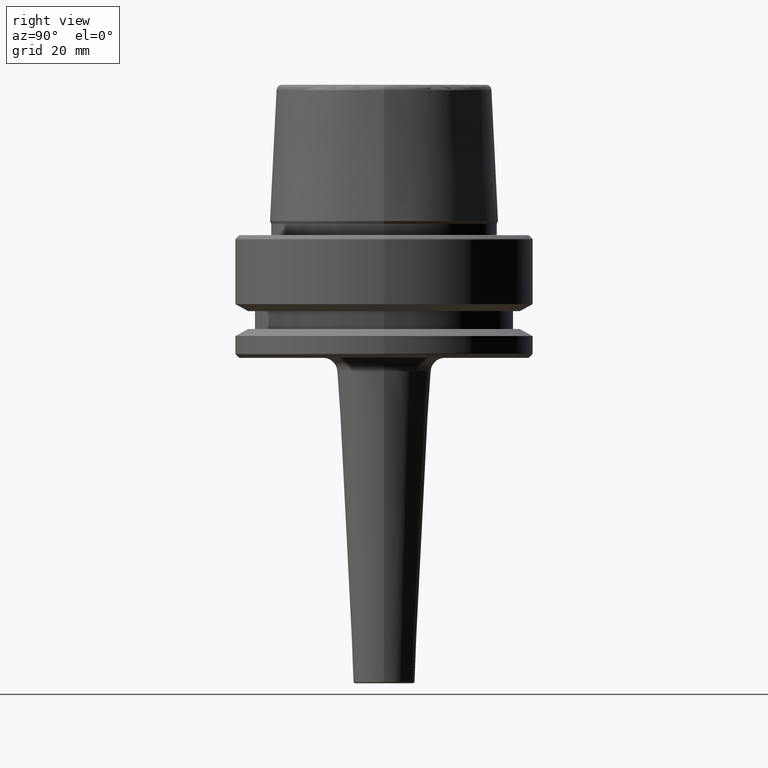
[diagram: clean part render]
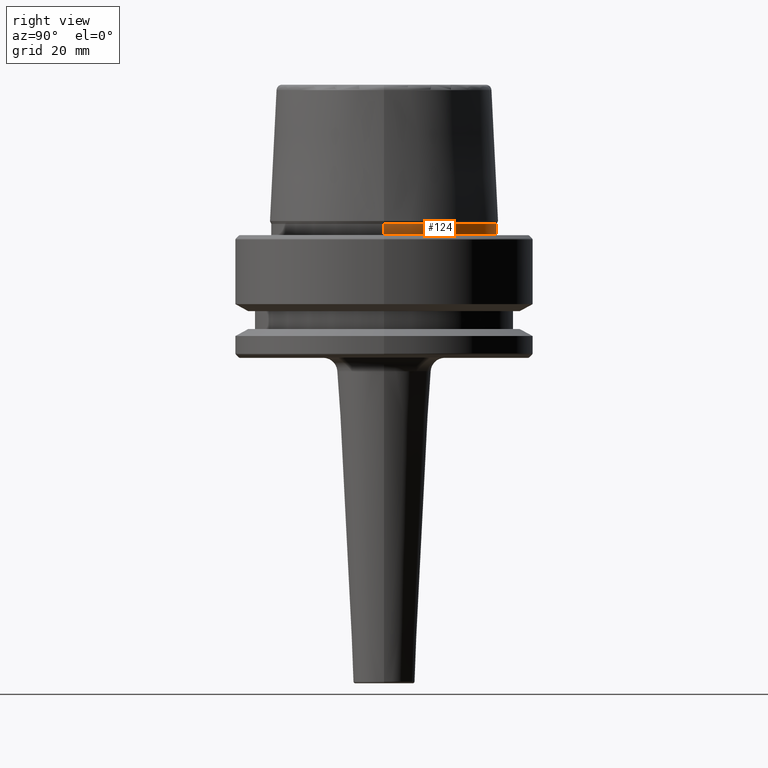
[diagram: same view with one face highlighted and labeled with its STEP entity id]
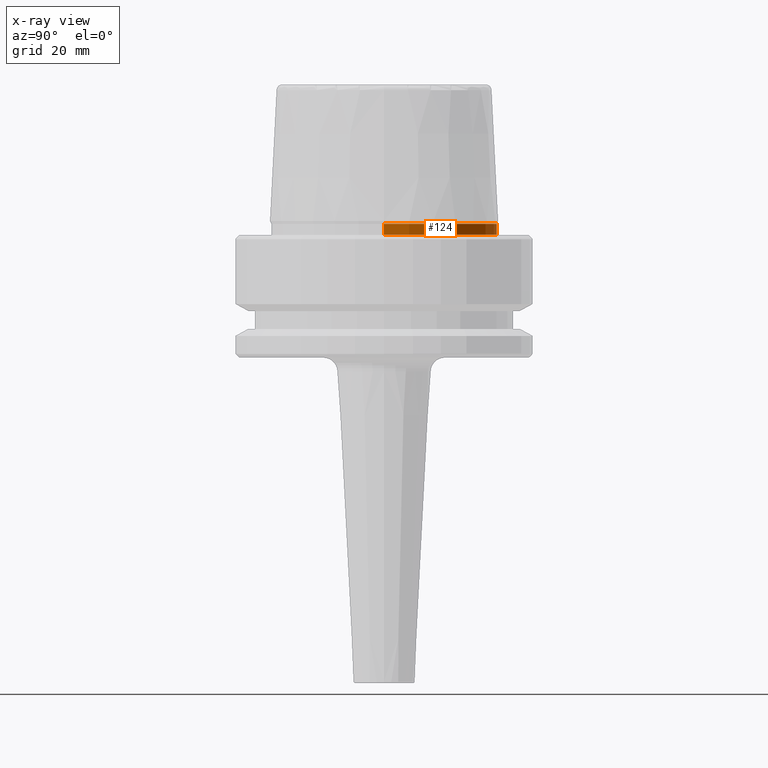
[diagram: x-ray of the same camera — body ghosted, the highlighted face saturated]
A machine part, right view. The second image highlights one B-rep face of the part: STEP entity #124.
The next image is the same camera in x-ray: the body ghosted, the highlighted face saturated — about 0% of this face is hidden behind the body in this view.
In plain terms, the highlighted cylindrical surface (partial cylindrical patch) has radius 23.89 mm, axis along (-0, -0, 1).
Its self-contained STEP definition (entity closure, byte-faithful):
#49 = CARTESIAN_POINT ( 'NONE',  ( 0.0000000000000000000, 0.0000000000000000000, 78.96908074195309300 ) ) ;
#87 = CIRCLE ( 'NONE', #232, 23.89000000000000100 ) ;
#93 = ORIENTED_EDGE ( 'NONE', *, *, #1085, .T. ) ;
#97 = ORIENTED_EDGE ( 'NONE', *, *, #1217, .F. ) ;
#111 = ORIENTED_EDGE ( 'NONE', *, *, #656, .T. ) ;
#124 = ADVANCED_FACE ( 'NONE', ( #640 ), #901, .T. ) ;
#179 = DIRECTION ( 'NONE',  ( -0.0000000000000000000, -0.0000000000000000000, 1.000000000000000000 ) ) ;
#202 = VERTEX_POINT ( 'NONE', #427 ) ;
#203 = DIRECTION ( 'NONE',  ( -0.0000000000000000000, -0.0000000000000000000, 1.000000000000000000 ) ) ;
#228 = CARTESIAN_POINT ( 'NONE',  ( 0.0000000000000000000, 0.0000000000000000000, 2.398838415132276100 ) ) ;
#232 = AXIS2_PLACEMENT_3D ( 'NONE', #228, #890, #322 ) ;
#322 = DIRECTION ( 'NONE',  ( 1.000000000000000000, 0.0000000000000000000, 0.0000000000000000000 ) ) ;
#334 = LINE ( 'NONE', #590, #1079 ) ;
#346 = VERTEX_POINT ( 'NONE', #596 ) ;
#398 = LINE ( 'NONE', #946, #584 ) ;
#403 = CIRCLE ( 'NONE', #623, 23.89000000000000400 ) ;
#427 = CARTESIAN_POINT ( 'NONE',  ( 23.89000000000000100, 0.0000000000000000000, 2.398838415132276100 ) ) ;
#560 = VERTEX_POINT ( 'NONE', #1043 ) ;
#584 = VECTOR ( 'NONE', #179, 1000.000000000000000 ) ;
#590 = CARTESIAN_POINT ( 'NONE',  ( -23.89000000000000100, 2.925681203163027000E-015, 78.96908074195309300 ) ) ;
#596 = CARTESIAN_POINT ( 'NONE',  ( 23.89000000000000400, 0.0000000000000000000, 0.1312552021302954000 ) ) ;
#597 = EDGE_CURVE ( 'NONE', #346, #202, #398, .T. ) ;
#623 = AXIS2_PLACEMENT_3D ( 'NONE', #766, #203, #866 ) ;
#640 = FACE_OUTER_BOUND ( 'NONE', #959, .T. ) ;
#656 = EDGE_CURVE ( 'NONE', #1007, #560, #334, .T. ) ;
#658 = DIRECTION ( 'NONE',  ( 1.000000000000000000, 0.0000000000000000000, 0.0000000000000000000 ) ) ;
#678 = DIRECTION ( 'NONE',  ( -0.0000000000000000000, -0.0000000000000000000, 1.000000000000000000 ) ) ;
#766 = CARTESIAN_POINT ( 'NONE',  ( 0.0000000000000000000, 0.0000000000000000000, 0.1312552021302954000 ) ) ;
#852 = DIRECTION ( 'NONE',  ( -0.0000000000000000000, -0.0000000000000000000, 1.000000000000000000 ) ) ;
#866 = DIRECTION ( 'NONE',  ( 1.000000000000000000, 0.0000000000000000000, 0.0000000000000000000 ) ) ;
#890 = DIRECTION ( 'NONE',  ( -0.0000000000000000000, -0.0000000000000000000, 1.000000000000000000 ) ) ;
#901 = CYLINDRICAL_SURFACE ( 'NONE', #948, 23.89000000000000100 ) ;
#946 = CARTESIAN_POINT ( 'NONE',  ( 23.89000000000000100, 0.0000000000000000000, 78.96908074195309300 ) ) ;
#948 = AXIS2_PLACEMENT_3D ( 'NONE', #49, #678, #658 ) ;
#959 = EDGE_LOOP ( 'NONE', ( #93, #111, #97, #1072 ) ) ;
#1007 = VERTEX_POINT ( 'NONE', #1055 ) ;
#1043 = CARTESIAN_POINT ( 'NONE',  ( -23.89000000000000100, 2.942846235451747500E-015, 2.398838415132276100 ) ) ;
#1055 = CARTESIAN_POINT ( 'NONE',  ( -23.89000000000000400, 2.961613815265650600E-015, 0.1312552021302954000 ) ) ;
#1072 = ORIENTED_EDGE ( 'NONE', *, *, #597, .F. ) ;
#1079 = VECTOR ( 'NONE', #852, 1000.000000000000000 ) ;
#1085 = EDGE_CURVE ( 'NONE', #346, #1007, #403, .T. ) ;
#1217 = EDGE_CURVE ( 'NONE', #202, #560, #87, .T. ) ;